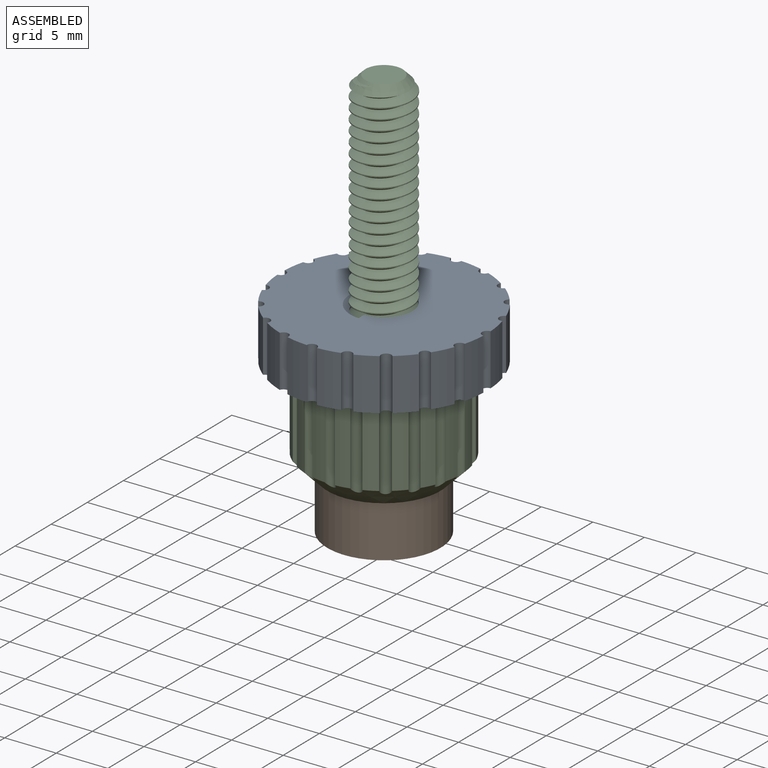
[diagram: assembled view]
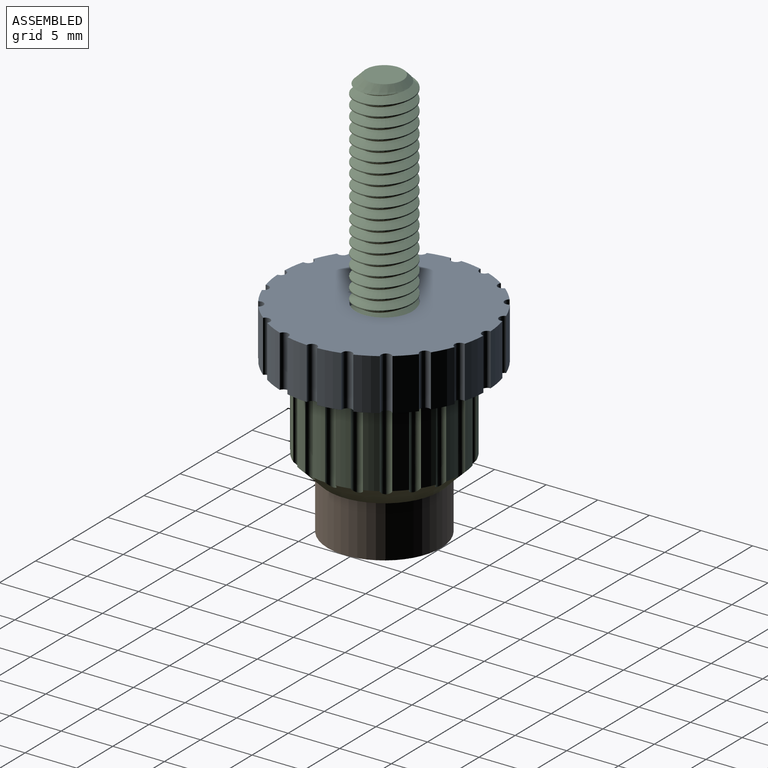
[diagram: assembled view, second angle]
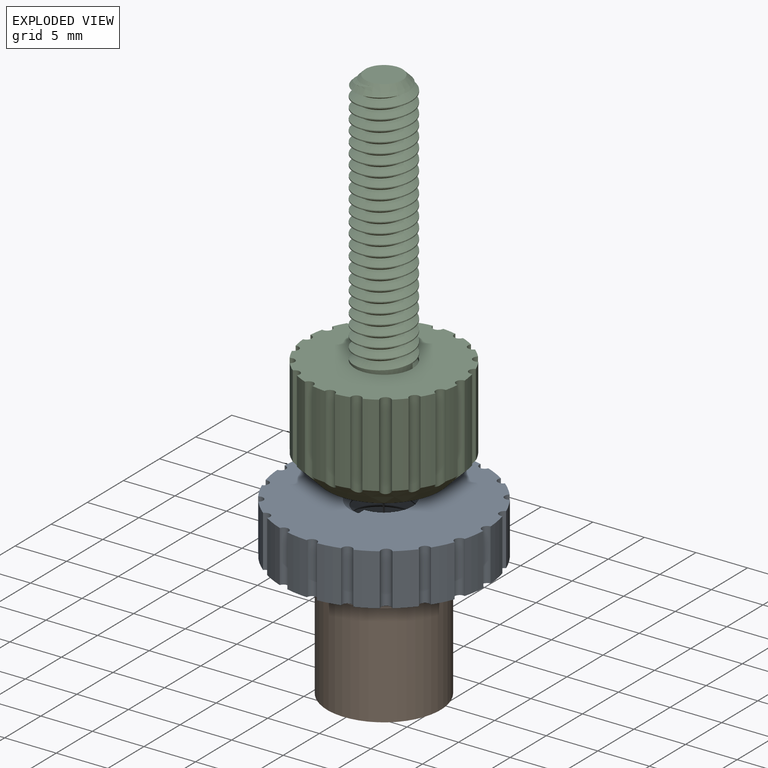
[diagram: exploded view]
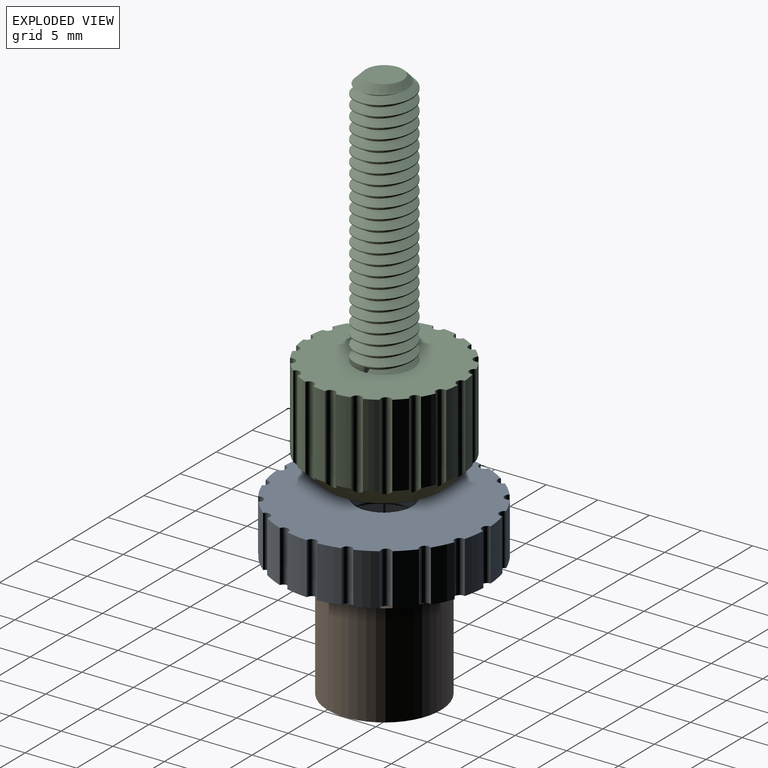
[diagram: exploded view, second angle]
ASSEMBLY  parts=3 mates=2
PART A: 47 faces, bbox 20.5x20.5x6.4 mm
  f0: cylinder r=2.75mm len=5.5mm, axis (0,0,-1), area 12mm2, adj f1,f22,f43,f44,f45,f46
  f1: plane 20.51x20.51mm, normal (0,0,-1), area 279.3mm2, adj f0,f2,f3,f4,f5,f6,f7,f8
  f2: cylinder r=10mm len=5mm, axis (0,0,-1), area 10.7mm2, adj f1,f22,f41,f42
  f3: cylinder r=10mm len=5mm, axis (0,0,-1), area 10.7mm2, adj f1,f22,f40,f41
  f4: cylinder r=10mm len=5mm, axis (0,0,-1), area 10.7mm2, adj f1,f22,f39,f40
  f5: cylinder r=10mm len=5mm, axis (0,0,-1), area 10.7mm2, adj f1,f22,f38,f39
  f6: cylinder r=10mm len=5mm, axis (0,0,-1), area 10.7mm2, adj f1,f22,f37,f38
  f7: cylinder r=10mm len=5mm, axis (0,0,-1), area 10.7mm2, adj f1,f22,f36,f37
  f8: cylinder r=10mm len=5mm, axis (0,0,-1), area 10.7mm2, adj f1,f22,f35,f36
  f9: cylinder r=10mm len=5mm, axis (0,0,-1), area 10.7mm2, adj f1,f22,f34,f35
  f10: cylinder r=10mm len=5mm, axis (0,0,-1), area 10.7mm2, adj f1,f22,f33,f34
  f11: cylinder r=10mm len=5mm, axis (0,0,-1), area 10.7mm2, adj f1,f22,f32,f33
  f12: cylinder r=10mm len=5mm, axis (0,0,-1), area 10.7mm2, adj f1,f22,f31,f32
  f13: cylinder r=10mm len=5mm, axis (0,0,-1), area 10.7mm2, adj f1,f22,f30,f31
  f14: cylinder r=10mm len=5mm, axis (0,0,-1), area 10.7mm2, adj f1,f22,f29,f30
  f15: cylinder r=10mm len=5mm, axis (0,0,-1), area 10.7mm2, adj f1,f22,f28,f29
  f16: cylinder r=10mm len=5mm, axis (0,0,-1), area 10.7mm2, adj f1,f22,f27,f28
  f17: cylinder r=10mm len=5mm, axis (0,0,-1), area 10.7mm2, adj f1,f22,f23,f27
  f18: cylinder r=10mm len=5mm, axis (0,0,-1), area 10.7mm2, adj f1,f22,f26,f42
  f19: cylinder r=10mm len=5mm, axis (0,0,-1), area 10.7mm2, adj f1,f22,f25,f26
  f20: cylinder r=10mm len=5mm, axis (0,0,-1), area 10.7mm2, adj f1,f22,f24,f25
  f21: cylinder r=10mm len=5mm, axis (0,0,-1), area 10.7mm2, adj f1,f22,f23,f24
  f22: plane 20.5x20.5mm, normal (0,0,1), area 279.3mm2, adj f0,f2,f3,f4,f5,f6,f7,f8
  f23: cylinder r=0.5mm len=5mm, axis (0,0,1), area 7.7mm2, adj f1,f17,f21,f22
  f24: cylinder r=0.5mm len=5mm, axis (0,0,1), area 7.7mm2, adj f1,f20,f21,f22
  f25: cylinder r=0.5mm len=5mm, axis (0,0,1), area 7.7mm2, adj f1,f19,f20,f22
  f26: cylinder r=0.5mm len=5mm, axis (0,0,1), area 7.7mm2, adj f1,f18,f19,f22
  f27: cylinder r=0.5mm len=5mm, axis (0,0,1), area 7.7mm2, adj f1,f16,f17,f22
  f28: cylinder r=0.5mm len=5mm, axis (0,0,1), area 7.7mm2, adj f1,f15,f16,f22
  f29: cylinder r=0.5mm len=5mm, axis (0,0,1), area 7.7mm2, adj f1,f14,f15,f22
  f30: cylinder r=0.5mm len=5mm, axis (0,0,1), area 7.7mm2, adj f1,f13,f14,f22
  f31: cylinder r=0.5mm len=5mm, axis (0,0,1), area 7.7mm2, adj f1,f12,f13,f22
  f32: cylinder r=0.5mm len=5mm, axis (0,0,1), area 7.7mm2, adj f1,f11,f12,f22
  f33: cylinder r=0.5mm len=5mm, axis (0,0,1), area 7.7mm2, adj f1,f10,f11,f22
  f34: cylinder r=0.5mm len=5mm, axis (0,0,1), area 7.7mm2, adj f1,f9,f10,f22
  f35: cylinder r=0.5mm len=5mm, axis (0,0,1), area 7.7mm2, adj f1,f8,f9,f22
  f36: cylinder r=0.5mm len=5mm, axis (0,0,1), area 7.7mm2, adj f1,f7,f8,f22
  f37: cylinder r=0.5mm len=5mm, axis (0,0,1), area 7.7mm2, adj f1,f6,f7,f22
  f38: cylinder r=0.5mm len=5mm, axis (0,0,1), area 7.7mm2, adj f1,f5,f6,f22
  f39: cylinder r=0.5mm len=5mm, axis (0,0,1), area 7.7mm2, adj f1,f4,f5,f22
  f40: cylinder r=0.5mm len=5mm, axis (0,0,1), area 7.7mm2, adj f1,f3,f4,f22
  f41: cylinder r=0.5mm len=5mm, axis (0,0,1), area 7.7mm2, adj f1,f2,f3,f22
  f42: cylinder r=0.5mm len=5mm, axis (0,0,1), area 7.7mm2, adj f1,f2,f18,f22
  f43: plane 0.78x0.45mm, normal (1,0,0), area 0.2mm2, adj f0,f1,f46
  f44: bspline ~8.15x7.06mm, area 85mm2, adj f0,f1,f45,f46
  f45: plane 0.78x0.45mm, normal (-1,0,0), area 0.2mm2, adj f0,f22,f44
  f46: bspline ~8.15x7.06mm, area 85.1mm2, adj f0,f22,f43,f44
PART B: 3 faces, bbox 11x11x10 mm
  f0: cylinder r=5.5mm len=11mm, axis (0,0,1), area 345.6mm2, adj f1,f2
  f1: plane 11x11mm, normal (0,0,-1), area 95mm2, adj f0
  f2: plane 11x11mm, normal (0,0,1), area 95mm2, adj f0
PART C: 51 faces, bbox 15x15x35.3 mm
  f0: cylinder r=2.8mm len=24mm, axis (0,0,-1), area 103.6mm2, adj f22,f46,f47,f48,f50
  f1: cylinder r=7.5mm len=8mm, axis (0,0,-1), area 10.8mm2, adj f22,f25,f44,f45
  f2: cylinder r=7.5mm len=8mm, axis (0,0,-1), area 10.8mm2, adj f22,f25,f43,f44
  f3: cylinder r=7.5mm len=8mm, axis (0,0,-1), area 10.8mm2, adj f22,f25,f42,f43
  f4: cylinder r=7.5mm len=8mm, axis (0,0,-1), area 10.8mm2, adj f22,f25,f41,f42
  f5: cylinder r=7.5mm len=8mm, axis (0,0,-1), area 10.8mm2, adj f22,f25,f40,f41
  f6: cylinder r=7.5mm len=8mm, axis (0,0,-1), area 10.8mm2, adj f22,f25,f39,f40
  f7: cylinder r=7.5mm len=8mm, axis (0,0,-1), area 10.8mm2, adj f22,f25,f38,f39
  f8: cylinder r=7.5mm len=8mm, axis (0,0,-1), area 10.8mm2, adj f22,f25,f37,f38
  f9: cylinder r=7.5mm len=8mm, axis (0,0,-1), area 10.8mm2, adj f22,f25,f36,f37
  f10: cylinder r=7.5mm len=8mm, axis (0,0,-1), area 10.8mm2, adj f22,f25,f35,f36
  f11: cylinder r=7.5mm len=8mm, axis (0,0,-1), area 10.8mm2, adj f22,f25,f34,f35
  f12: cylinder r=7.5mm len=8mm, axis (0,0,-1), area 10.8mm2, adj f22,f25,f33,f34
  f13: cylinder r=7.5mm len=8mm, axis (0,0,-1), area 10.8mm2, adj f22,f25,f32,f33
  f14: cylinder r=7.5mm len=8mm, axis (0,0,-1), area 10.8mm2, adj f22,f25,f31,f32
  f15: cylinder r=7.5mm len=8mm, axis (0,0,-1), area 10.8mm2, adj f22,f25,f30,f31
  f16: cylinder r=7.5mm len=8mm, axis (0,0,-1), area 10.8mm2, adj f22,f25,f26,f30
  f17: cylinder r=7.5mm len=8mm, axis (0,0,-1), area 10.8mm2, adj f22,f25,f29,f45
  f18: cylinder r=7.5mm len=8mm, axis (0,0,-1), area 10.8mm2, adj f22,f25,f28,f29
  f19: cylinder r=7.5mm len=8mm, axis (0,0,-1), area 10.8mm2, adj f22,f25,f27,f28
  f20: plane 3.6x3.6mm, normal (0,0,1), area 10.2mm2, adj f46
  f21: cylinder r=7.5mm len=8mm, axis (0,0,-1), area 10.8mm2, adj f22,f25,f26,f27
  f22: plane 14.97x14.97mm, normal (0,0,1), area 144.3mm2, adj f0,f1,f2,f3,f4,f5,f6,f7
  f23: cylinder r=5.5mm len=11mm, axis (0,0,-1), area 172.8mm2, adj f24,f25
  f24: plane 11x11mm, normal (0,0,-1), area 95mm2, adj f23
  f25: cone r=7.5mm half-angle=45deg, axis (0,0,1), area 104.6mm2, adj f1,f2,f3,f4,f5,f6,f7,f8
  f26: cylinder r=0.5mm len=8mm, axis (0,0,1), area 12.3mm2, adj f16,f21,f22,f25
  f27: cylinder r=0.5mm len=8mm, axis (0,0,1), area 12.3mm2, adj f19,f21,f22,f25
  f28: cylinder r=0.5mm len=8mm, axis (0,0,1), area 12.3mm2, adj f18,f19,f22,f25
  f29: cylinder r=0.5mm len=8mm, axis (0,0,1), area 12.3mm2, adj f17,f18,f22,f25
  f30: cylinder r=0.5mm len=8mm, axis (0,0,1), area 12.3mm2, adj f15,f16,f22,f25
  f31: cylinder r=0.5mm len=8mm, axis (0,0,1), area 12.3mm2, adj f14,f15,f22,f25
  f32: cylinder r=0.5mm len=8mm, axis (0,0,1), area 12.3mm2, adj f13,f14,f22,f25
  f33: cylinder r=0.5mm len=8mm, axis (0,0,1), area 12.3mm2, adj f12,f13,f22,f25
  f34: cylinder r=0.5mm len=8mm, axis (0,0,1), area 12.3mm2, adj f11,f12,f22,f25
  f35: cylinder r=0.5mm len=8mm, axis (0,0,1), area 12.3mm2, adj f10,f11,f22,f25
  f36: cylinder r=0.5mm len=8mm, axis (0,0,1), area 12.3mm2, adj f9,f10,f22,f25
  f37: cylinder r=0.5mm len=8mm, axis (0,0,1), area 12.3mm2, adj f8,f9,f22,f25
  f38: cylinder r=0.5mm len=8mm, axis (0,0,1), area 12.3mm2, adj f7,f8,f22,f25
  f39: cylinder r=0.5mm len=8.5mm, axis (0,0,1), area 12.8mm2, adj f6,f7,f22,f25
  f40: cylinder r=0.5mm len=8mm, axis (0,0,1), area 12.3mm2, adj f5,f6,f22,f25
  f41: cylinder r=0.5mm len=8mm, axis (0,0,1), area 12.3mm2, adj f4,f5,f22,f25
  f42: cylinder r=0.5mm len=8mm, axis (0,0,1), area 12.3mm2, adj f3,f4,f22,f25
  f43: cylinder r=0.5mm len=8mm, axis (0,0,1), area 12.3mm2, adj f2,f3,f22,f25
  f44: cylinder r=0.5mm len=8mm, axis (0,0,1), area 12.3mm2, adj f1,f2,f22,f25
  f45: cylinder r=0.5mm len=8mm, axis (0,0,1), area 12.3mm2, adj f1,f17,f22,f25
  f46: cone r=1.8mm half-angle=45deg, axis (0,0,-1), area 12.5mm2, adj f0,f20,f48,f50
  f47: plane 0.9x0.78mm, normal (0,1,0), area 0.4mm2, adj f0,f48,f49,f50
  f48: bspline ~25.28x6.47mm, area 335.6mm2, adj f0,f46,f47,f49,f50
  f49: cylinder r=2.8mm len=5.46mm, axis (0,0,-1), area 1.8mm2, adj f22,f47,f48
  f50: bspline ~25.28x6.47mm, area 329.3mm2, adj f0,f46,f47,f48
PLACE A t=(-14.22,-2.16,16.62)mm
PLACE B t=(-14.24,-2.14,6.62)mm
PLACE C t=(-14.24,-2.14,6.62)mm
MATE revolute A.f1 <-> C.f0  axis (0,0,-1) through (-14.24,-2.14,16.62)mm
MATE fastened B.f0 <-> C.f23  axis (0,0,1) through (-14.24,-2.14,11.62)mm
